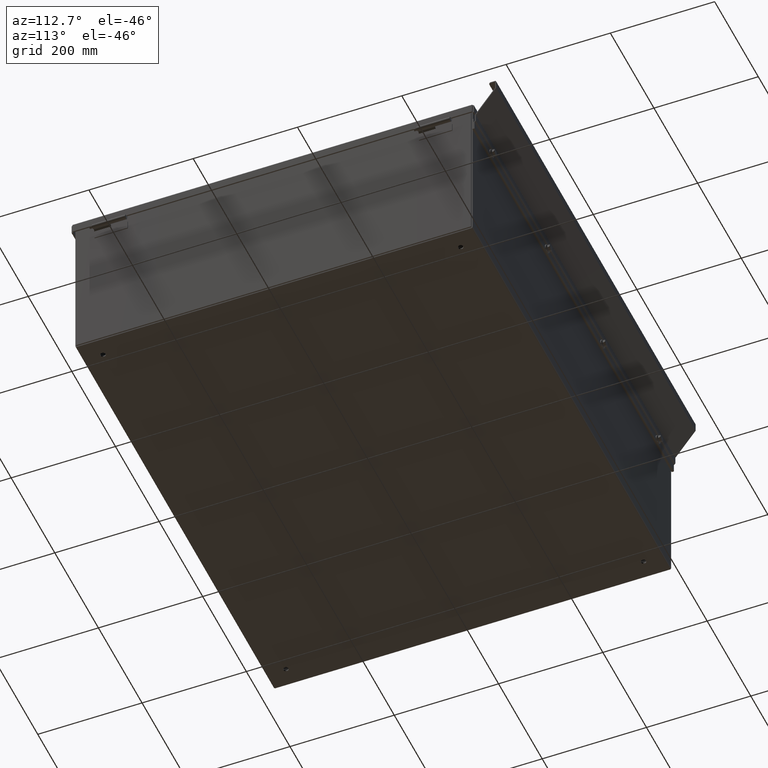
[diagram: clean part render]
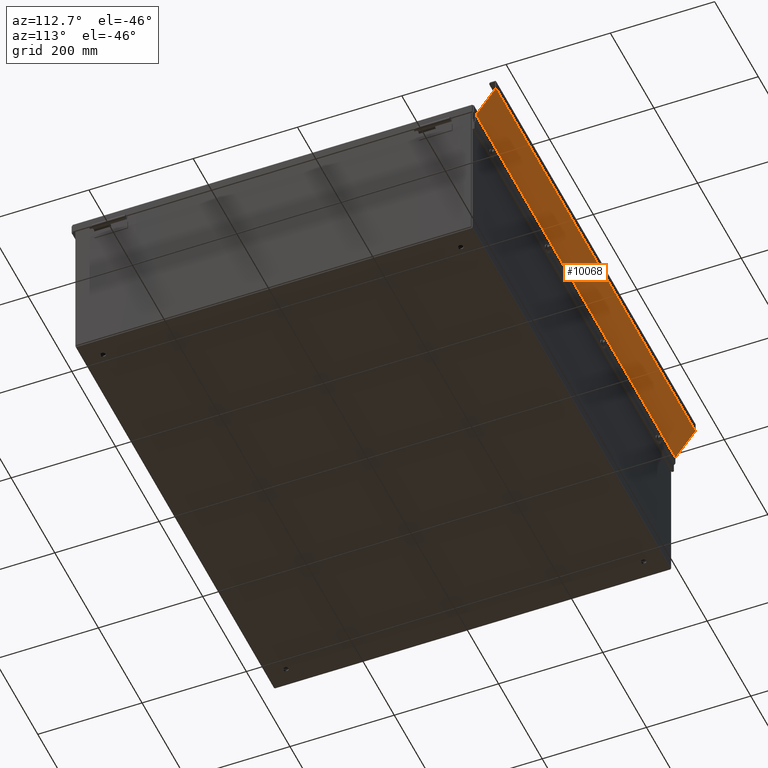
[diagram: same view with one face highlighted and labeled with its STEP entity id]
A machine part, auxiliary view. The second image highlights one B-rep face of the part: STEP entity #10068.
In plain terms, the highlighted planar face has unit normal (0, 0.809, -0.5878).
Its self-contained STEP definition (entity closure, byte-faithful):
#842=PLANE($,#10965);
#1508=LINE($,#16336,#2256);
#1534=LINE($,#16424,#2282);
#1549=LINE($,#16476,#2297);
#1550=LINE($,#16478,#2298);
#2256=VECTOR($,#13107,2.55660440394296);
#2282=VECTOR($,#13175,2.55660440394309);
#2297=VECTOR($,#13244,36.);
#2298=VECTOR($,#13247,36.);
#3011=FACE_OUTER_BOUND($,#3708,.T.);
#3708=EDGE_LOOP($,(#8310,#8311,#8312,#8313));
#4933=VERTEX_POINT($,#16333);
#4934=VERTEX_POINT($,#16335);
#4974=VERTEX_POINT($,#16421);
#4975=VERTEX_POINT($,#16423);
#6081=EDGE_CURVE($,#4934,#4933,#1508,.T.);
#6125=EDGE_CURVE($,#4975,#4974,#1534,.T.);
#6150=EDGE_CURVE($,#4974,#4934,#1549,.T.);
#6151=EDGE_CURVE($,#4975,#4933,#1550,.T.);
#8310=ORIENTED_EDGE($,*,*,#6150,.T.);
#8311=ORIENTED_EDGE($,*,*,#6081,.T.);
#8312=ORIENTED_EDGE($,*,*,#6151,.F.);
#8313=ORIENTED_EDGE($,*,*,#6125,.T.);
#10068=ADVANCED_FACE($,(#3011),#842,.T.);
#10965=AXIS2_PLACEMENT_3D($,#16477,#13245,#13246);
#13107=DIRECTION($,(-7.70755181846705E-017,0.587785252292473,0.809016994374948));
#13175=DIRECTION($,(7.70755181846705E-017,-0.587785252292473,-0.809016994374947));
#13244=DIRECTION($,(-1.,-1.31128703695885E-016,0.));
#13245=DIRECTION('center_axis',(-1.06085349740328E-016,0.809016994374947,
-0.587785252292473));
#13246=DIRECTION('ref_axis',(-1.,0.,2.8199664825479E-016));
#13247=DIRECTION($,(-1.,-1.29153458344141E-015,-3.58585305431558E-015));
#16333=CARTESIAN_POINT('',(-7.54532050027917E-018,0.542399038657959,-0.667066599775275));
#16335=CARTESIAN_POINT('',(2.03653456408506E-016,-0.960335325925701,-2.73540301045896));
#16336=CARTESIAN_POINT($,(3.01072791046636E-017,-0.980436287267742,-2.76306961023424));
#16421=CARTESIAN_POINT('',(36.,-0.960335325925697,-2.73540301045896));
#16423=CARTESIAN_POINT('',(36.,0.542399038658039,-0.667066599775171));
#16424=CARTESIAN_POINT($,(36.,-0.980436287267738,-2.76306961023424));
#16476=CARTESIAN_POINT($,(18.,-0.960335325925699,-2.73540301045896));
#16477=CARTESIAN_POINT('Origin',(-1.72215956130097E-016,0.5625,-0.6394));
#16478=CARTESIAN_POINT($,(1.27577383865384E-016,0.542399038657959,-0.667066599775275));